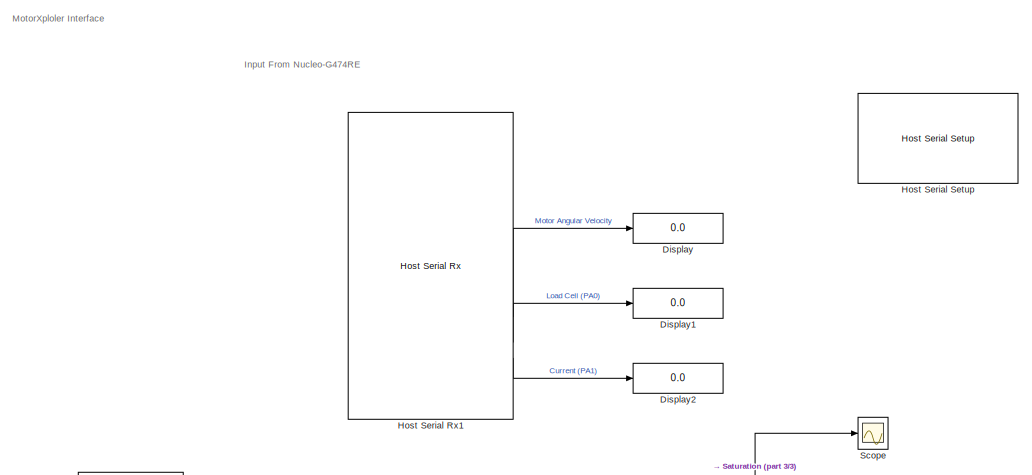
[diagram: root canvas - part 1/3, top left region]
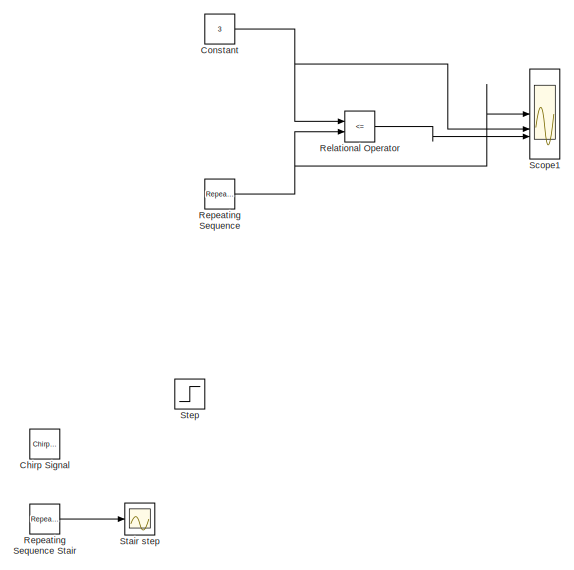
[diagram: root canvas - part 2/3, middle right region]
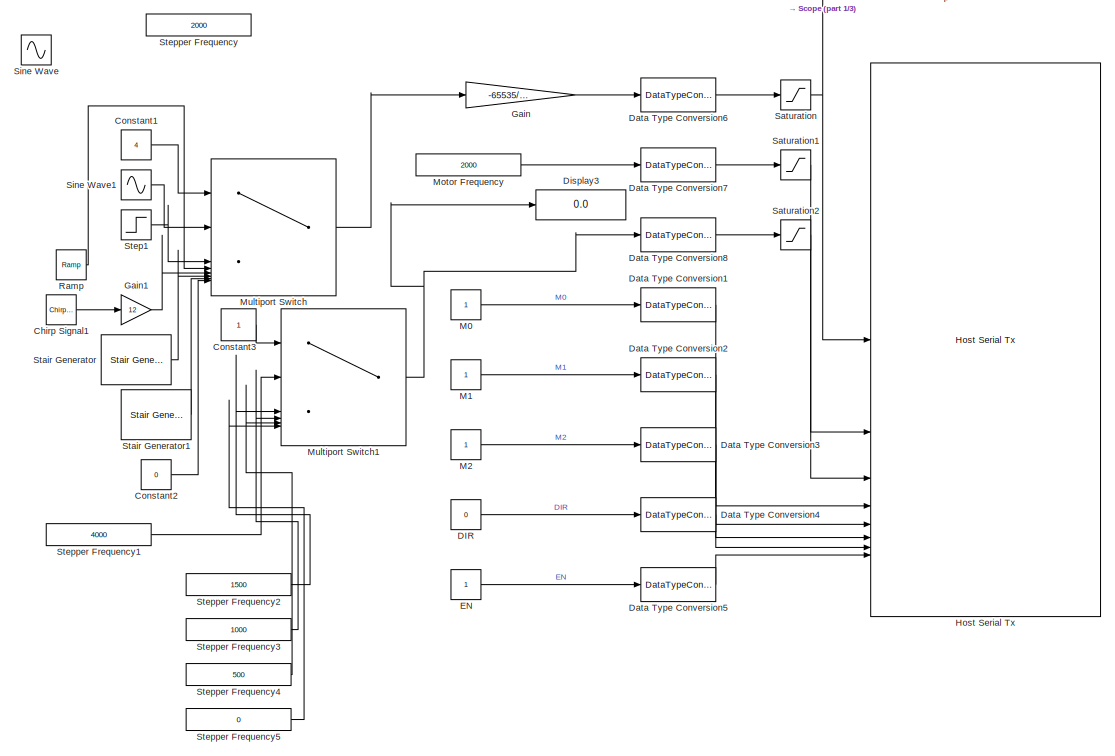
[diagram: root canvas - part 3/3, bottom left region]
MODEL slx_9202f3b6fb9f
KIND model
CONFIG AbsTol = auto
CONFIG EnableMultiTasking = on
CONFIG FixedStep = 0.001
CONFIG MaxStep = auto
CONFIG MinStep = auto
CONFIG RelTol = 1e-3
CONFIG SampleTimeConstraint = Unconstrained
CONFIG SolverName = FixedStepAuto
CONFIG StartTime = 0.0
CONFIG StopTime = 100
BLOCK [Reference] Chirp Signal  REF=simulink/Sources/Chirp Signal
  Commented = on
  SourceBlock = simulink/Sources/Chirp Signal
  SourceType = chirp
BLOCK [Reference] Chirp Signal1  REF=simulink/Sources/Chirp Signal
  SourceBlock = simulink/Sources/Chirp Signal
  SourceType = chirp
BLOCK [Constant] Constant
  Commented = on
  Value = 3
BLOCK [Constant] Constant1
  Value = 4
  VectorParams1D = off
BLOCK [Constant] Constant2
  Value = 0
BLOCK [Constant] Constant3
  Commented = on
  VectorParams1D = off
BLOCK [Constant] DIR
  Value = 0
BLOCK [DataTypeConversion] Data Type Conversion1
  RndMeth = Floor
  SaturateOnIntegerOverflow = off
BLOCK [DataTypeConversion] Data Type Conversion2
  RndMeth = Floor
  SaturateOnIntegerOverflow = off
BLOCK [DataTypeConversion] Data Type Conversion3
  RndMeth = Floor
  SaturateOnIntegerOverflow = off
BLOCK [DataTypeConversion] Data Type Conversion4
  RndMeth = Floor
  SaturateOnIntegerOverflow = off
BLOCK [DataTypeConversion] Data Type Conversion5
  RndMeth = Floor
  SaturateOnIntegerOverflow = off
BLOCK [DataTypeConversion] Data Type Conversion6
  RndMeth = Floor
  SaturateOnIntegerOverflow = off
BLOCK [DataTypeConversion] Data Type Conversion7
  RndMeth = Floor
  SaturateOnIntegerOverflow = off
BLOCK [DataTypeConversion] Data Type Conversion8
  RndMeth = Floor
  SaturateOnIntegerOverflow = off
BLOCK [Display] Display
  Decimation = 1
BLOCK [Display] Display1
  Decimation = 1
BLOCK [Display] Display2
  Decimation = 1
BLOCK [Display] Display3
  Decimation = 1
BLOCK [Constant] EN
BLOCK [Gain] Gain
  Gain = -65535/12
BLOCK [Gain] Gain1
  Gain = 12
BLOCK [Reference] Host Serial Rx1  REF=amg_usbconverter_n_connect_lib/Host Serial Rx
  SourceBlock = amg_usbconverter_n_connect_lib/Host Serial Rx
  SourceProductName = aMG USB Converter N
  SourceType = amg_usbconverter_n_connect
BLOCK [Reference] Host Serial Setup  REF=amg_usbconverter_n_connect_lib/Host Serial Setup
  SourceBlock = amg_usbconverter_n_connect_lib/Host Serial Setup
  SourceProductName = aMG USB Converter N
  SourceType = amg_usbconverter_n_connect
BLOCK [Reference] Host Serial Tx  REF=amg_usbconverter_n_connect_lib/Host Serial Tx
  SourceBlock = amg_usbconverter_n_connect_lib/Host Serial Tx
  SourceProductName = aMG USB Converter N
  SourceType = amg_usbconverter_n_connect
BLOCK [Constant] M0
BLOCK [Constant] M1
BLOCK [Constant] M2
BLOCK [Constant] Motor Frequency
  OutDataTypeStr = single
  Value = 2000
BLOCK [MultiPortSwitch] Multiport Switch
  InputSameDT = off
  Inputs = 7
  SaturateOnIntegerOverflow = off
BLOCK [MultiPortSwitch] Multiport Switch1
  Commented = on
  InputSameDT = off
  Inputs = 7
  SaturateOnIntegerOverflow = off
BLOCK [Reference] Ramp  REF=simulink/Sources/Ramp
  SourceBlock = simulink/Sources/Ramp
  SourceType = Ramp
BLOCK [RelationalOperator] Relational Operator
  Commented = on
  InputSameDT = off
  Operator = <=
  OutDataTypeStr = boolean
  RndMeth = Simplest
BLOCK [Reference] Repeating Sequence  REF=simulink/Sources/Repeating
Sequence
  Commented = on
  SourceBlock = simulink/Sources/Repeating\nSequence
  SourceType = Repeating table
BLOCK [Reference] Repeating Sequence Stair  REF=simulink/Sources/Repeating
Sequence
Stair
  Commented = on
  SourceBlock = simulink/Sources/Repeating\nSequence\nStair
  SourceType = Repeating Sequence Stair
BLOCK [Saturate] Saturation
  LowerLimit = -65535
  UpperLimit = 65535
BLOCK [Saturate] Saturation1
  LowerLimit = 0
  UpperLimit = 20000
BLOCK [Saturate] Saturation2
  LowerLimit = 0
  UpperLimit = inf
BLOCK [Scope] Scope
  ActiveDisplayYMaximum = 13.5
  ActiveDisplayYMinimum = -1.4999999999999996
  DataLoggingVariableName = ScopeData1
  Floating = off
  GraphicalSettings = {"Style":{"BackgroundColor":[0.12941176470588237,0.12941176470588237,0.12941176470588237],"AxesColor":[0.07058823529411765,0.07058823529411765,0.07058823529411765],"LabelsColor":[0.8509803921568627,0.8509803921568627,0.8509803921568627],"PreserveColors":false,"Visible":[true],"LineStyle":["-"],"LineWidth":[1.5],"BarWidth":[0.9],"LineColor":["auto"],"LineFaceAlpha":[1],"LineEdgeAlpha":[1],"Marker":...<+1949ch>
  MultipleDisplayCache = [{"MaxYLimMag":13.5,"MaxYLimReal":13.5,"MinYLimMag":0,"MinYLimReal":-1.4999999999999996,"PlotAsMagnitudePhase":false,"ShowGrid":true,"ShowLegend":false,"Title":"%<SignalLabel>","YLabel":""}]
  NumInputPorts = 1
  ScopeFrameLocation = window
  WasSavedAsWebScope = on
  WindowPosition = [488.000000,270.000000,560.000000,420.000000,]
BLOCK [Scope] Scope1
  ActiveDisplayYMaximum = 3.375
  ActiveDisplayYMinimum = -0.37499999999999989
  Commented = on
  DataLoggingVariableName = ScopeData2
  Floating = off
  GraphicalSettings = {"Style":{"BackgroundColor":[0.12941176470588237,0.12941176470588237,0.12941176470588237],"AxesColor":[0.07058823529411765,0.07058823529411765,0.07058823529411765],"LabelsColor":[0.8509803921568627,0.8509803921568627,0.8509803921568627],"PreserveColors":false,"Visible":[true,true,true],"LineStyle":["-","-","-"],"LineWidth":[1.5,1.5,1.5],"BarWidth":[0.9,0.9,0.9],"LineColor":["auto","auto","auto"],"...<+2224ch>
  MultipleDisplayCache = [{"MaxYLimMag":3.375,"MaxYLimReal":3.375,"MinYLimMag":0,"MinYLimReal":-0.37499999999999989,"PlotAsMagnitudePhase":false,"ShowGrid":true,"ShowLegend":false,"Title":"%<SignalLabel>","YLabel":""}]
  NumInputPorts = 3
  ScopeFrameLocation = window
  WasSavedAsWebScope = on
  WindowPosition = [488.000000,270.000000,560.000000,420.000000,]
BLOCK [Sin] Sine Wave
  Amplitude = 12
  Commented = on
  SampleTime = 0
BLOCK [Sin] Sine Wave1
  Amplitude = 12
  Frequency = pi
  SampleTime = 0
BLOCK [Reference] Stair Generator  REF=eeStairGenerator/Stair Generator
  LibrarySourceBlock = ee_sl_lib/General Control/Stair Generator
  SourceBlock = eeStairGenerator/Stair Generator
  SourceType = Stair Generator
BLOCK [Reference] Stair Generator1  REF=eeStairGenerator/Stair Generator
  LibrarySourceBlock = ee_sl_lib/General Control/Stair Generator
  SourceBlock = eeStairGenerator/Stair Generator
  SourceType = Stair Generator
BLOCK [Scope] Stair step
  ActiveDisplayYMaximum = 21.942999999999998
  ActiveDisplayYMinimum = -1.3269999999999995
  Commented = on
  Floating = off
  GraphicalSettings = {"Style":{"BackgroundColor":[0.12941176470588237,0.12941176470588237,0.12941176470588237],"AxesColor":[0.07058823529411765,0.07058823529411765,0.07058823529411765],"LabelsColor":[0.8509803921568627,0.8509803921568627,0.8509803921568627],"PreserveColors":false,"Visible":[true],"LineStyle":["-"],"LineWidth":[1.5],"BarWidth":[0.9],"LineColor":["auto"],"LineFaceAlpha":[1],"LineEdgeAlpha":[1],"Marker":...<+2033ch>
  MultipleDisplayCache = [{"MaxYLimMag":21.942999999999998,"MaxYLimReal":21.942999999999998,"MinYLimMag":0,"MinYLimReal":-1.3269999999999995,"PlotAsMagnitudePhase":false,"ShowGrid":true,"ShowLegend":false,"Title":"%<SignalLabel>","YLabel":""}]
  NumInputPorts = 1
  ScopeFrameLocation = window
  WasSavedAsWebScope = on
  WindowPosition = [488.000000,270.000000,560.000000,420.000000,]
BLOCK [Step] Step
  After = 12
  Commented = on
  SampleTime = 0.1
BLOCK [Step] Step1
  After = 9
  SampleTime = 0
BLOCK [Constant] Stepper Frequency
  OutDataTypeStr = single
  Value = 2000
BLOCK [Constant] Stepper Frequency1
  Commented = on
  OutDataTypeStr = single
  Value = 4000
BLOCK [Constant] Stepper Frequency2
  Commented = on
  OutDataTypeStr = single
  Value = 1500
BLOCK [Constant] Stepper Frequency3
  Commented = on
  OutDataTypeStr = single
  Value = 1000
BLOCK [Constant] Stepper Frequency4
  Commented = on
  OutDataTypeStr = single
  Value = 500
BLOCK [Constant] Stepper Frequency5
  Commented = on
  OutDataTypeStr = single
  Value = 0
ANNOTATION (root): Input From Nucleo-G474RE
ANNOTATION (root): MotorXploler Interface
LINE Chirp Signal1:1 -> Gain1:1
LINE Constant1:1 -> Multiport Switch:1
LINE Constant2:1 -> Multiport Switch:8
LINE Constant3:1 -> Multiport Switch1:1
NET Constant:1 -> Relational Operator:1, Scope1:2
LINE DIR:1 -> Data Type Conversion4:1
LINE Data Type Conversion1:1 -> Host Serial Tx:4
LINE Data Type Conversion2:1 -> Host Serial Tx:5
LINE Data Type Conversion3:1 -> Host Serial Tx:6
LINE Data Type Conversion4:1 -> Host Serial Tx:7
LINE Data Type Conversion5:1 -> Host Serial Tx:8
LINE Data Type Conversion6:1 -> Saturation:1
LINE Data Type Conversion7:1 -> Saturation1:1
LINE Data Type Conversion8:1 -> Saturation2:1
LINE EN:1 -> Data Type Conversion5:1
LINE Gain1:1 -> Multiport Switch:5
LINE Gain:1 -> Data Type Conversion6:1
LINE Host Serial Rx1:2 -> Display:1
LINE Host Serial Rx1:3 -> Display1:1
LINE Host Serial Rx1:4 -> Display2:1
LINE M0:1 -> Data Type Conversion1:1
LINE M1:1 -> Data Type Conversion2:1
LINE M2:1 -> Data Type Conversion3:1
LINE Motor Frequency:1 -> Data Type Conversion7:1
NET Multiport Switch1:1 -> Data Type Conversion8:1, Display3:1
LINE Multiport Switch:1 -> Gain:1
LINE Ramp:1 -> Multiport Switch:4
LINE Relational Operator:1 -> Scope1:3
LINE Repeating Sequence Stair:1 -> Stair step:1
NET Repeating Sequence:1 -> Relational Operator:2, Scope1:1
LINE Saturation1:1 -> Host Serial Tx:2
LINE Saturation2:1 -> Host Serial Tx:3
NET Saturation:1 -> Host Serial Tx:1, Scope:1
LINE Sine Wave1:1 -> Multiport Switch:2
LINE Stair Generator1:1 -> Multiport Switch:7
LINE Stair Generator:1 -> Multiport Switch:6
LINE Step1:1 -> Multiport Switch:3
LINE Stepper Frequency1:1 -> Multiport Switch1:2
LINE Stepper Frequency2:1 -> Multiport Switch1:3
LINE Stepper Frequency3:1 -> Multiport Switch1:4
LINE Stepper Frequency4:1 -> Multiport Switch1:5
LINE Stepper Frequency5:1 -> Multiport Switch1:6
note: NET lines group one-source signal fan-out (src -> all destinations, sorted); 1:1 wires keep LINE
